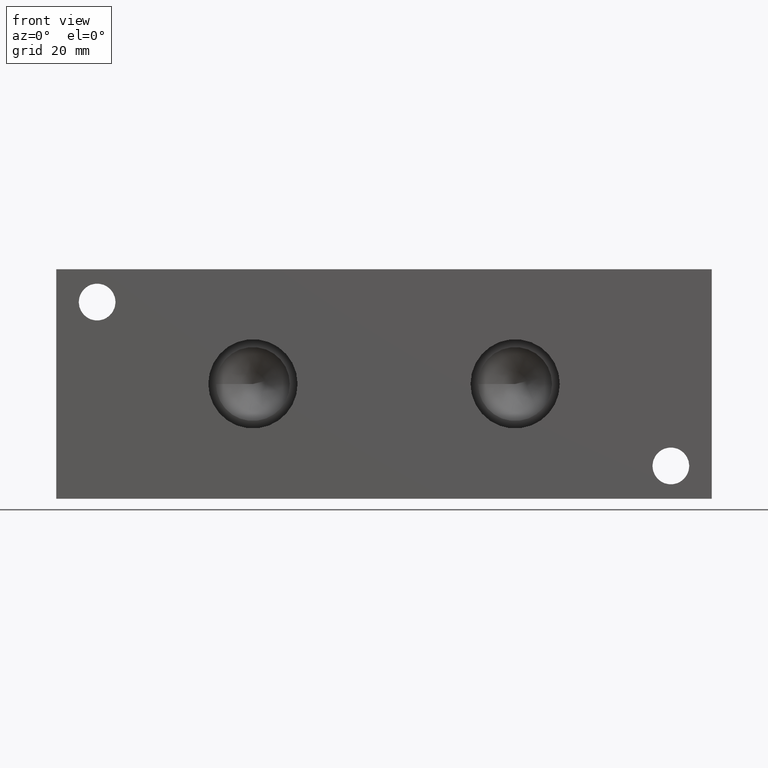
[diagram: clean part render]
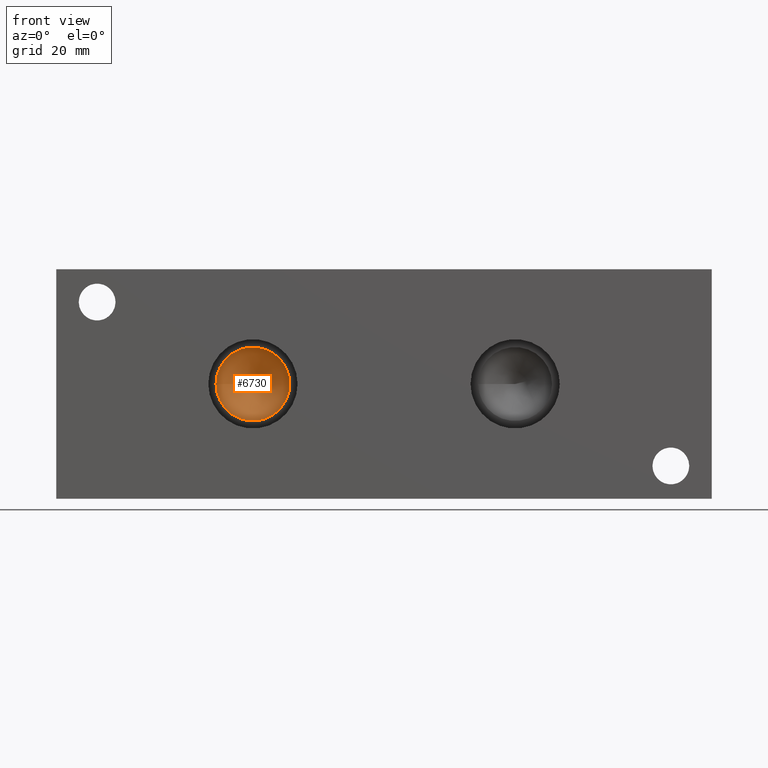
[diagram: same view with one face highlighted and labeled with its STEP entity id]
A machine part, front view. The second image highlights one B-rep face of the part: STEP entity #6730.
In plain terms, the highlighted conical surface has half-angle 60 deg.
Its self-contained STEP definition (entity closure, byte-faithful):
#44=CONICAL_SURFACE('',#7024,3.57505,1.0471975511966);
#78=CIRCLE('',#7025,7.1501);
#79=CIRCLE('',#7026,7.1501);
#683=FACE_OUTER_BOUND('',#1056,.T.);
#1056=EDGE_LOOP('',(#5908,#5909,#5910,#5911));
#1739=LINE('',#11416,#2406);
#2406=VECTOR('',#8239,3.57505);
#3212=VERTEX_POINT('',#11412);
#3213=VERTEX_POINT('',#11413);
#3214=VERTEX_POINT('',#11415);
#4125=EDGE_CURVE('',#3212,#3213,#78,.T.);
#4126=EDGE_CURVE('',#3213,#3214,#1739,.T.);
#4127=EDGE_CURVE('',#3213,#3212,#79,.T.);
#5908=ORIENTED_EDGE('',*,*,#4125,.T.);
#5909=ORIENTED_EDGE('',*,*,#4126,.T.);
#5910=ORIENTED_EDGE('',*,*,#4126,.F.);
#5911=ORIENTED_EDGE('',*,*,#4127,.T.);
#6730=ADVANCED_FACE('',(#683),#44,.F.);
#7024=AXIS2_PLACEMENT_3D('',#11411,#8235,#8236);
#7025=AXIS2_PLACEMENT_3D('',#11414,#8237,#8238);
#7026=AXIS2_PLACEMENT_3D('',#11417,#8240,#8241);
#8235=DIRECTION('center_axis',(0.,-1.,0.));
#8236=DIRECTION('ref_axis',(1.,0.,0.));
#8237=DIRECTION('center_axis',(0.,-1.,0.));
#8238=DIRECTION('ref_axis',(1.,0.,0.));
#8239=DIRECTION('',(0.866025403784439,0.5,1.06057523872491E-16));
#8240=DIRECTION('center_axis',(0.,-1.,0.));
#8241=DIRECTION('ref_axis',(1.,0.,0.));
#11411=CARTESIAN_POINT('Origin',(38.1,14.2116660798664,22.225));
#11412=CARTESIAN_POINT('',(45.2501,12.14761,22.225));
#11413=CARTESIAN_POINT('',(30.9499,12.14761,22.225));
#11414=CARTESIAN_POINT('Origin',(38.1,12.14761,22.225));
#11415=CARTESIAN_POINT('',(38.1,16.2757221597327,22.225));
#11416=CARTESIAN_POINT('',(34.52495,14.2116660798664,22.225));
#11417=CARTESIAN_POINT('Origin',(38.1,12.14761,22.225));